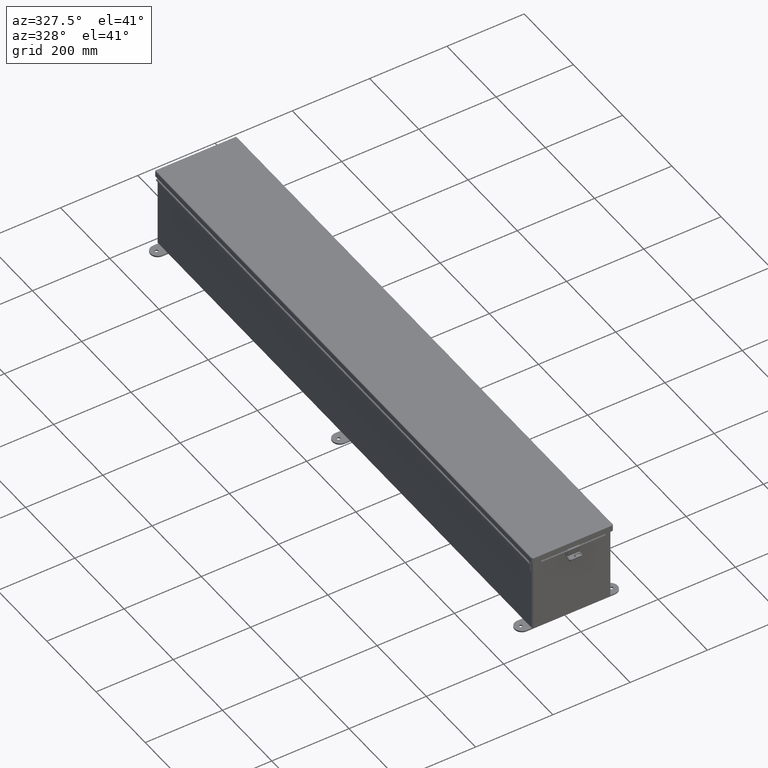
[diagram: clean part render]
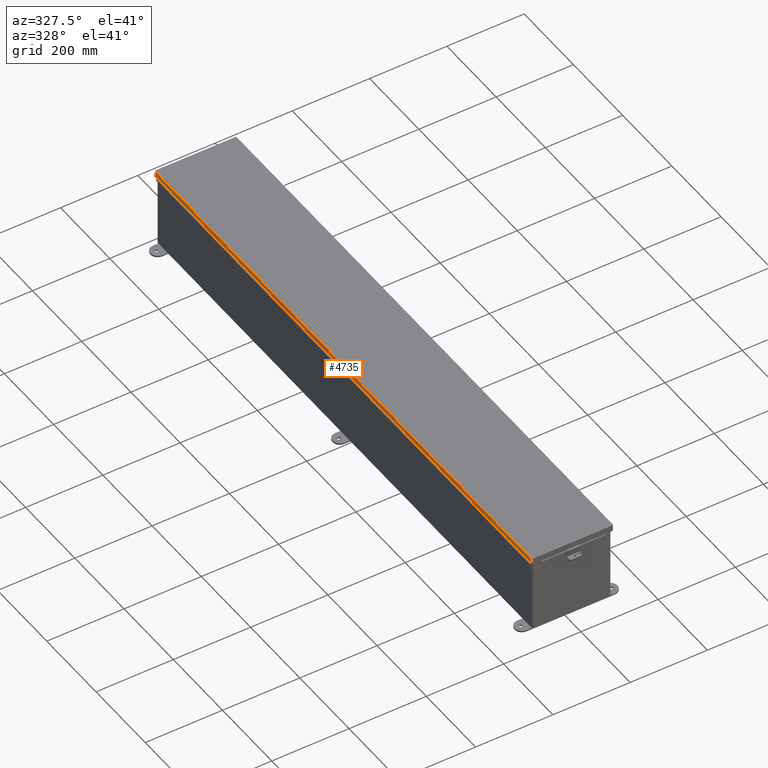
[diagram: same view with one face highlighted and labeled with its STEP entity id]
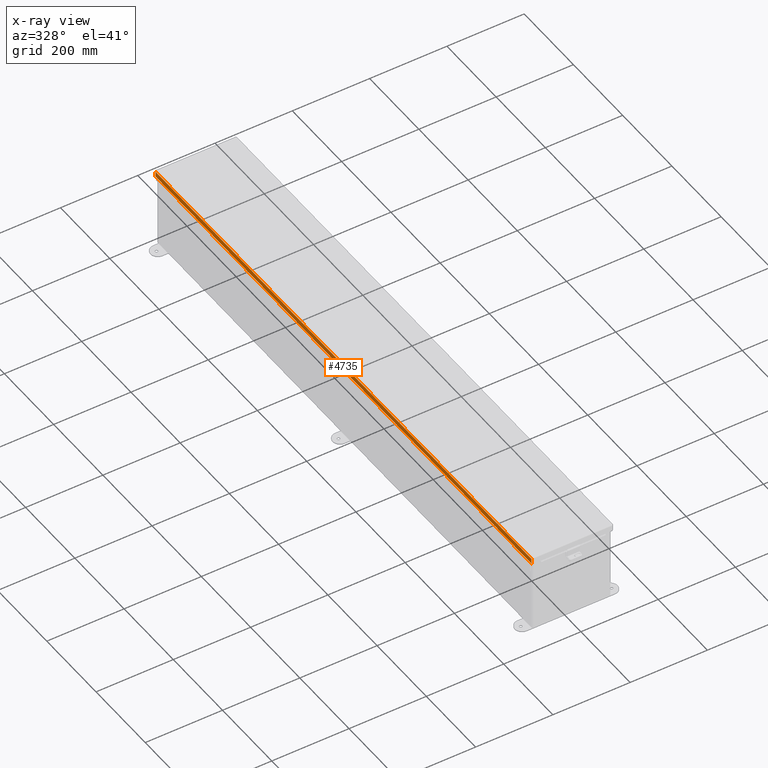
[diagram: x-ray of the same camera — body ghosted, the highlighted face saturated]
A machine part, auxiliary view. The second image highlights one B-rep face of the part: STEP entity #4735.
The next image is the same camera in x-ray: the body ghosted, the highlighted face saturated — about 0% of this face is hidden behind the body in this view.
In plain terms, the highlighted planar face has unit normal (1, -0, 0).
Its self-contained STEP definition (entity closure, byte-faithful):
#4735 = ADVANCED_FACE ( 'NONE', ( #32537 ), #27906, .F. ) ;
#5509 = CARTESIAN_POINT ( 'NONE',  ( 4.156250000000021300, -30.15625000000000000, 0.01300000000000010700 ) ) ;
#6406 = DIRECTION ( 'NONE',  ( -8.831620719720703700E-029, -1.000000000000000000, 2.006664927655948800E-029 ) ) ;
#6956 = EDGE_CURVE ( 'NONE', #9358, #27873, #13705, .T. ) ;
#7361 = VECTOR ( 'NONE', #28907, 39.37007874015748100 ) ;
#7461 = EDGE_CURVE ( 'NONE', #9358, #34069, #12651, .T. ) ;
#7899 = CARTESIAN_POINT ( 'NONE',  ( 4.156250000000021300, 0.0000000000000000000, -1.748382715945128500E-014 ) ) ;
#9358 = VERTEX_POINT ( 'NONE', #11123 ) ;
#11123 = CARTESIAN_POINT ( 'NONE',  ( 4.156250000000021300, 30.07447893218812900, 0.01300000000000120000 ) ) ;
#11277 = DIRECTION ( 'NONE',  ( -1.000000000000000000, -8.927653005502387300E-029, 3.971430846686186800E-015 ) ) ;
#11584 = VECTOR ( 'NONE', #12074, 39.37007874015748100 ) ;
#12074 = DIRECTION ( 'NONE',  ( 3.971430846686186800E-015, -1.986943405025415600E-029, 1.000000000000000000 ) ) ;
#12651 = LINE ( 'NONE', #35413, #11584 ) ;
#13108 = ORIENTED_EDGE ( 'NONE', *, *, #7461, .T. ) ;
#13267 = AXIS2_PLACEMENT_3D ( 'NONE', #7899, #11277, #34620 ) ;
#13705 = LINE ( 'NONE', #5509, #7361 ) ;
#14118 = VERTEX_POINT ( 'NONE', #18278 ) ;
#14389 = EDGE_CURVE ( 'NONE', #34069, #14118, #42139, .T. ) ;
#18037 = EDGE_LOOP ( 'NONE', ( #21206, #13108, #24047, #34662 ) ) ;
#18066 = DIRECTION ( 'NONE',  ( 3.971430846686186800E-015, -1.986943405025415600E-029, 1.000000000000000000 ) ) ;
#18278 = CARTESIAN_POINT ( 'NONE',  ( 4.156250000000016900, -30.07447893218813600, 0.5502999999999999000 ) ) ;
#21105 = VECTOR ( 'NONE', #18066, 39.37007874015748100 ) ;
#21206 = ORIENTED_EDGE ( 'NONE', *, *, #6956, .F. ) ;
#21503 = EDGE_CURVE ( 'NONE', #27873, #14118, #37817, .T. ) ;
#23088 = CARTESIAN_POINT ( 'NONE',  ( 4.156250000000016900, -1.067128122525102800E-017, 0.5502999999999999000 ) ) ;
#24047 = ORIENTED_EDGE ( 'NONE', *, *, #14389, .T. ) ;
#25429 = VECTOR ( 'NONE', #6406, 39.37007874015748100 ) ;
#27873 = VERTEX_POINT ( 'NONE', #34017 ) ;
#27906 = PLANE ( 'NONE',  #13267 ) ;
#28907 = DIRECTION ( 'NONE',  ( -8.842088651449865500E-029, -1.000000000000000000, -2.717693340845343800E-017 ) ) ;
#32537 = FACE_OUTER_BOUND ( 'NONE', #18037, .T. ) ;
#34017 = CARTESIAN_POINT ( 'NONE',  ( 4.156250000000021300, -30.07447893218812900, 0.01300000000000120000 ) ) ;
#34069 = VERTEX_POINT ( 'NONE', #34099 ) ;
#34099 = CARTESIAN_POINT ( 'NONE',  ( 4.156250000000016900, 30.07447893218812900, 0.5502999999999999000 ) ) ;
#34620 = DIRECTION ( 'NONE',  ( 3.971430846686186800E-015, -1.986943405025415600E-029, 1.000000000000000000 ) ) ;
#34662 = ORIENTED_EDGE ( 'NONE', *, *, #21503, .F. ) ;
#35413 = CARTESIAN_POINT ( 'NONE',  ( 4.156250000000021300, 30.07447893218812900, -1.639108796198557900E-014 ) ) ;
#37817 = LINE ( 'NONE', #41405, #21105 ) ;
#41405 = CARTESIAN_POINT ( 'NONE',  ( 4.156250000000021300, -30.07447893218813600, 0.0000000000000000000 ) ) ;
#42139 = LINE ( 'NONE', #23088, #25429 ) ;